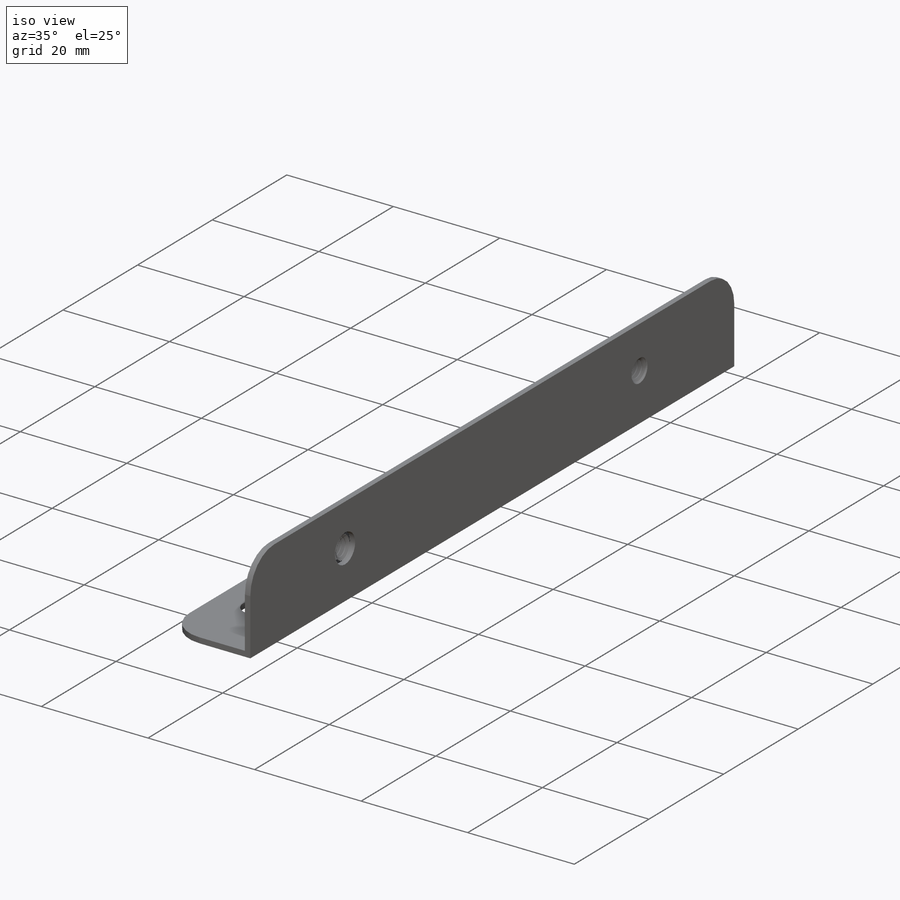
[diagram: iso view]
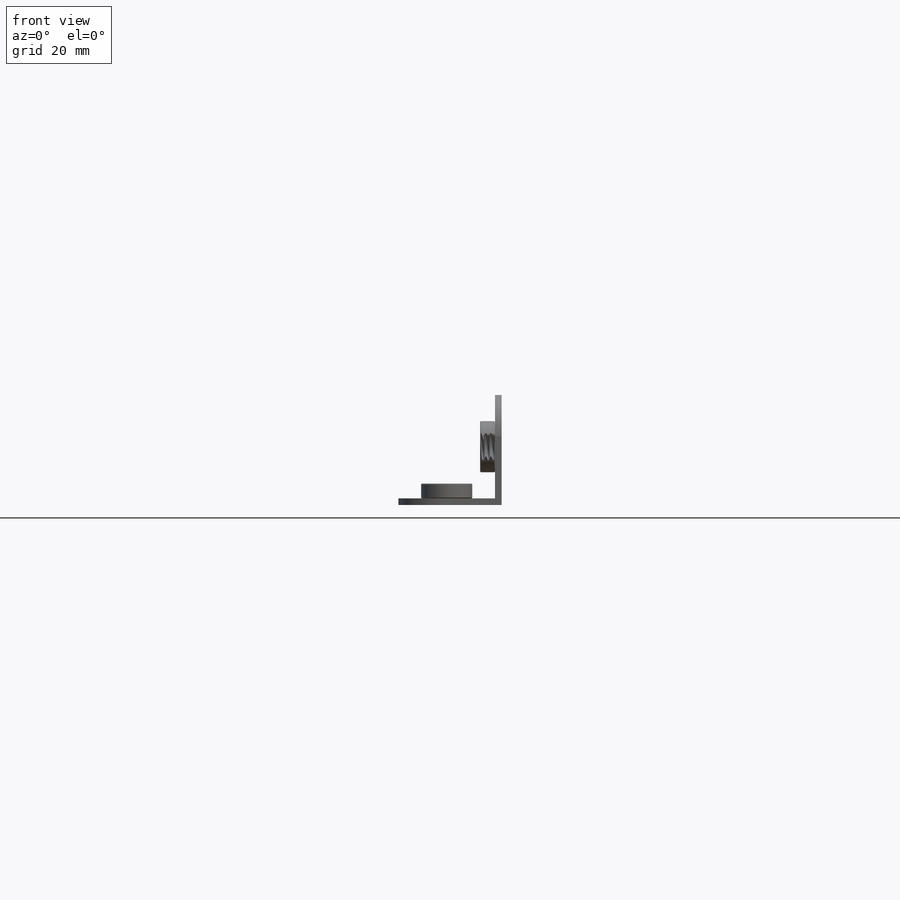
[diagram: front view]
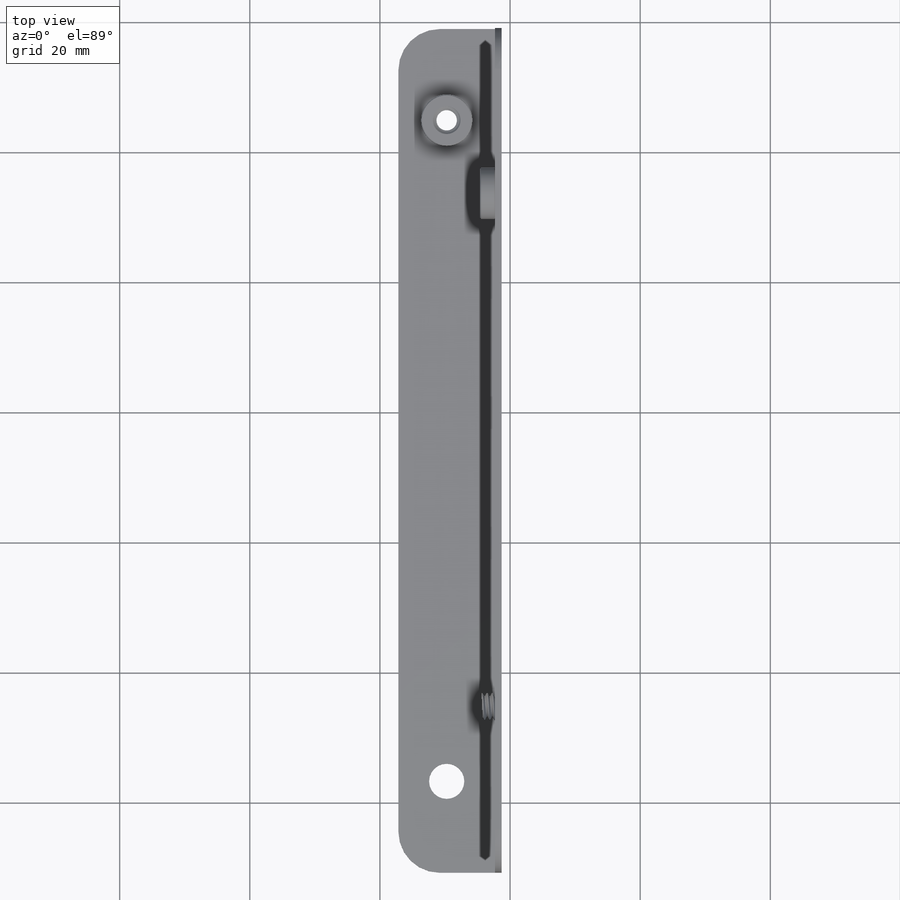
[diagram: top view]
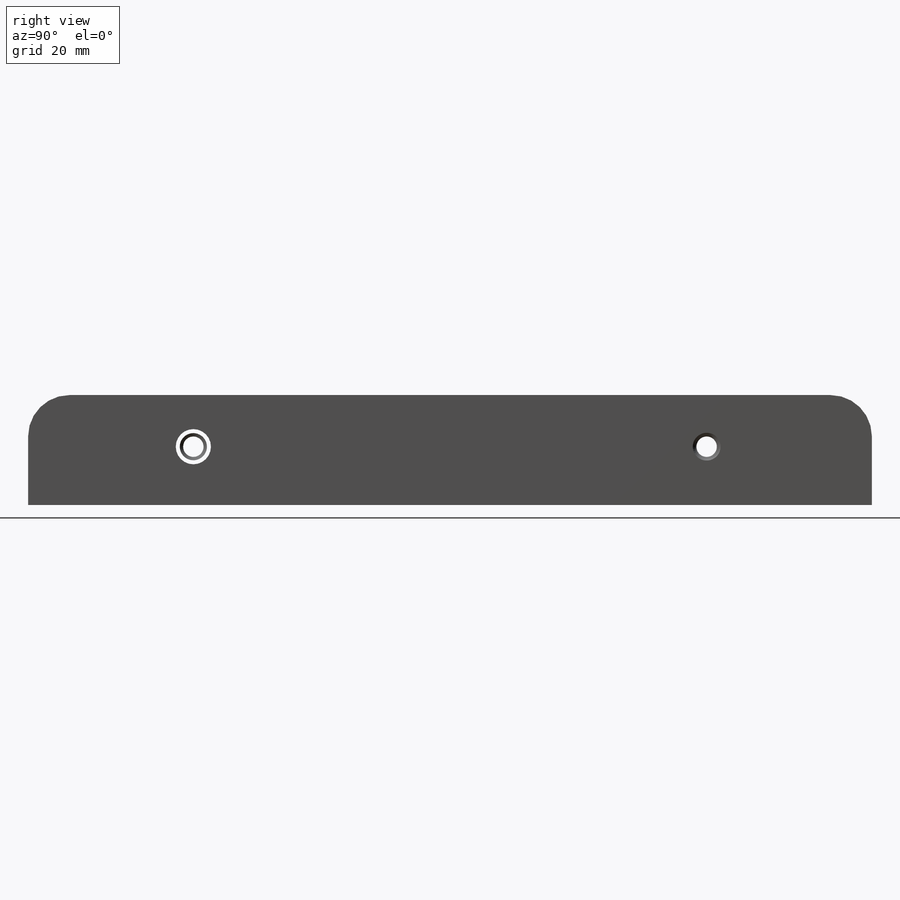
[diagram: right view]
SOLIDWORKS PART (.sldprt)
format: sldprt  version: not decoded by parser v0  size: 2,046,976 bytes
history: native  units: mm
features: sketch x4, cut_extrude x3, move_body x2, material x1, extrude x1, plane x1, mirror x1 + 2 further entries (+22 scaffold rows collapsed; 10 parser-record rows omitted)
feature tree (47):
  scaffold x22  (default folders/planes/origin — collapsed)
  material  "Material <not specified>"
  sketch  "Sketch1"  dims[D1=4.7752mm D2=4.7752mm]
  cut_extrude  "Cut-Extrude1"  Depth=2.54mm
  sketch  "Sketch4"
  extrude  "Boss-Extrude1"  [1 undecoded]
  sketch  "Sketch5"  dims[D2=5.4102mm D1=101.6mm]
  cut_extrude  "Cut-Extrude4"  Depth=2.54mm
  plane  "Plane1"
  sketch  "Sketch2"  dims[D1=5.4102mm D2=5.4102mm]
  cut_extrude  "Cut-Extrude2"  Depth=2.54mm
  "96439A320"
  parser-record x10  (decoder bookkeeping rows leaked as tree rows — omitted from the tree; the rows remain in map.json)
  move_body  "Body-Move/Copy2"
  "96439A3203"
  move_body  "Body-Move/Copy6"
  mirror  "Mirror2"
decode coverage: 6 of 11 modeling features carry decoded parameters; 2 rows unclassified (native names shown)
note: 1 parameter value undecoded
note: suppression state not decoded; provenance and decode notes live in map.json
